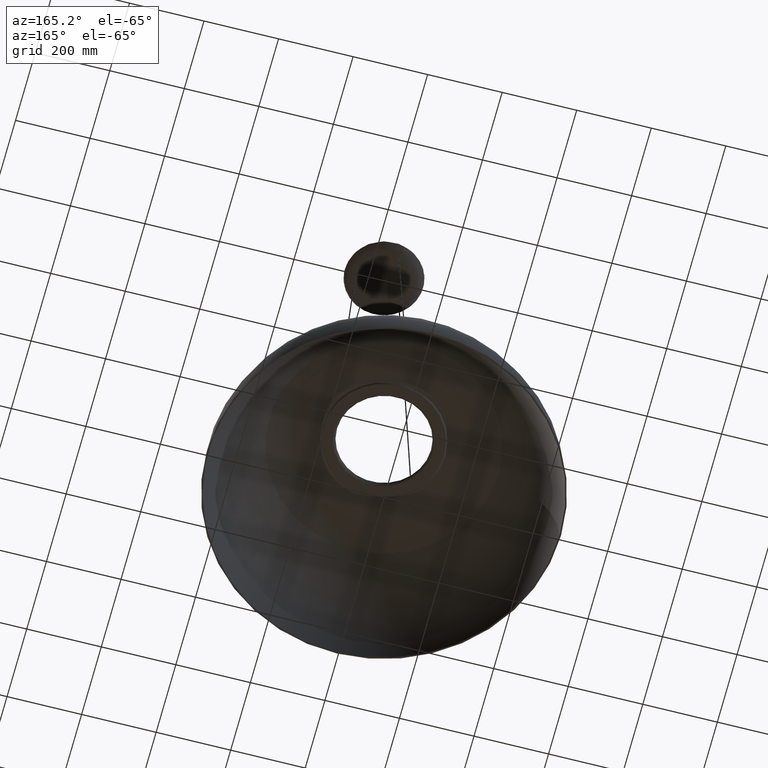
[diagram: clean part render]
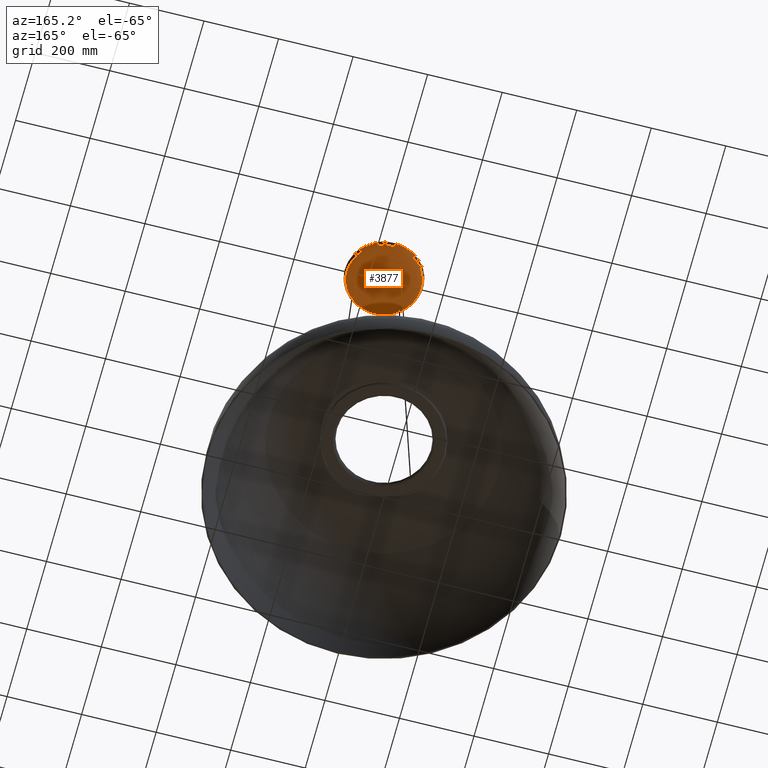
[diagram: same view with one face highlighted and labeled with its STEP entity id]
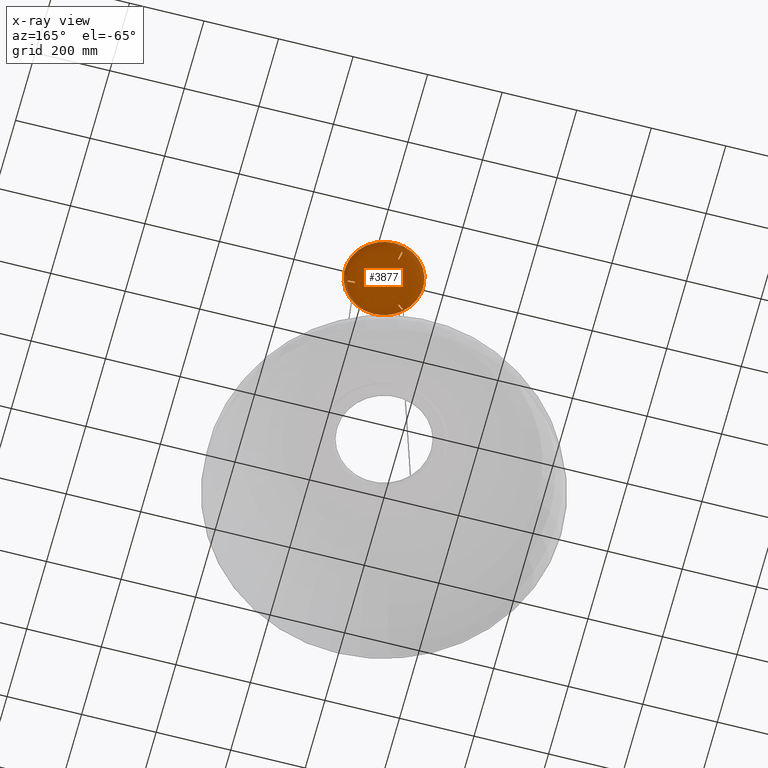
[diagram: x-ray of the same camera — body ghosted, the highlighted face saturated]
A machine part, auxiliary view. The second image highlights one B-rep face of the part: STEP entity #3877.
The next image is the same camera in x-ray: the body ghosted, the highlighted face saturated — about 1% of this face is hidden behind the body in this view.
In plain terms, the highlighted face is a freeform B-spline surface patch.
Its self-contained STEP definition (entity closure, byte-faithful):
#58=B_SPLINE_CURVE_WITH_KNOTS('',3,(#8068,#8069,#8070,#8071,#8072,#8073,
#8074,#8075,#8076),.UNSPECIFIED.,.F.,.F.,(4,1,1,1,1,1,4),(3.46944695195361E-18,
0.00146917827496323,0.00220376741244484,0.00293835654992646,0.00367294568740807,
0.00440753482488968,0.00587671309985291),.UNSPECIFIED.);
#59=B_SPLINE_CURVE_WITH_KNOTS('',3,(#8079,#8080,#8081,#8082,#8083),
 .UNSPECIFIED.,.F.,.F.,(4,1,4),(0.,0.00894403255815303,0.0178880651163061),
 .UNSPECIFIED.);
#60=B_SPLINE_CURVE_WITH_KNOTS('',3,(#8085,#8086,#8087,#8088,#8089,#8090,
#8091),.UNSPECIFIED.,.F.,.F.,(4,1,1,1,4),(1.73472347597681E-18,0.00139969760530542,
0.00279939521061083,0.00419909281591625,0.00559879042122166),
 .UNSPECIFIED.);
#61=B_SPLINE_CURVE_WITH_KNOTS('',3,(#8093,#8094,#8095,#8096,#8097),
 .UNSPECIFIED.,.F.,.F.,(4,1,4),(8.67361737988404E-19,0.00894403255815304,
0.0178880651163061),.UNSPECIFIED.);
#62=B_SPLINE_CURVE_WITH_KNOTS('',3,(#8101,#8102,#8103,#8104,#8105,#8106,
#8107,#8108,#8109),.UNSPECIFIED.,.F.,.F.,(4,1,1,1,1,1,4),(2.74283864732555E-18,
0.00146917827496326,0.00220376741244488,0.00293835654992651,0.00367294568740814,
0.00440753482488976,0.00587671309985302),.UNSPECIFIED.);
#63=B_SPLINE_CURVE_WITH_KNOTS('',3,(#8112,#8113,#8114,#8115,#8116),
 .UNSPECIFIED.,.F.,.F.,(4,1,4),(0.,0.00894403255815305,0.0178880651163061),
 .UNSPECIFIED.);
#64=B_SPLINE_CURVE_WITH_KNOTS('',3,(#8118,#8119,#8120,#8121,#8122,#8123,
#8124),.UNSPECIFIED.,.F.,.F.,(4,1,1,1,4),(1.44096954211131E-17,0.00139969760530541,
0.00279939521061081,0.0041990928159162,0.0055987904212216),
 .UNSPECIFIED.);
#65=B_SPLINE_CURVE_WITH_KNOTS('',3,(#8126,#8127,#8128,#8129,#8130),
 .UNSPECIFIED.,.F.,.F.,(4,1,4),(0.,0.00894403255815304,0.0178880651163061),
 .UNSPECIFIED.);
#66=B_SPLINE_CURVE_WITH_KNOTS('',3,(#8131,#8132,#8133,#8134,#8135,#8136,
#8137,#8138,#8139),.UNSPECIFIED.,.F.,.F.,(4,1,1,1,1,1,4),(1.66614749014063E-17,
0.00146917827496325,0.00220376741244487,0.00293835654992649,0.00367294568740811,
0.00440753482488973,0.00587671309985296),.UNSPECIFIED.);
#67=B_SPLINE_CURVE_WITH_KNOTS('',3,(#8142,#8143,#8144,#8145,#8146),
 .UNSPECIFIED.,.F.,.F.,(4,1,4),(0.,0.00894403255815303,0.0178880651163061),
 .UNSPECIFIED.);
#68=B_SPLINE_CURVE_WITH_KNOTS('',3,(#8148,#8149,#8150,#8151,#8152,#8153,
#8154),.UNSPECIFIED.,.F.,.F.,(4,1,1,1,4),(1.58990032769613E-17,0.00139969760530542,
0.00279939521061082,0.00419909281591623,0.00559879042122163),
 .UNSPECIFIED.);
#69=B_SPLINE_CURVE_WITH_KNOTS('',3,(#8156,#8157,#8158,#8159,#8160),
 .UNSPECIFIED.,.F.,.F.,(4,1,4),(8.67361737988403E-19,0.00894403255815304,
0.0178880651163061),.UNSPECIFIED.);
#85=B_SPLINE_SURFACE_WITH_KNOTS('',3,3,((#7753,#7754,#7755,#7756,#7757,
#7758,#7759,#7760,#7761,#7762,#7763,#7764,#7765,#7766,#7767,#7768,#7769,
#7770,#7771,#7772,#7773,#7774,#7775,#7776,#7777,#7778,#7779,#7780,#7781,
#7782,#7783,#7784,#7785,#7786,#7787),(#7788,#7789,#7790,#7791,#7792,#7793,
#7794,#7795,#7796,#7797,#7798,#7799,#7800,#7801,#7802,#7803,#7804,#7805,
#7806,#7807,#7808,#7809,#7810,#7811,#7812,#7813,#7814,#7815,#7816,#7817,
#7818,#7819,#7820,#7821,#7822),(#7823,#7824,#7825,#7826,#7827,#7828,#7829,
#7830,#7831,#7832,#7833,#7834,#7835,#7836,#7837,#7838,#7839,#7840,#7841,
#7842,#7843,#7844,#7845,#7846,#7847,#7848,#7849,#7850,#7851,#7852,#7853,
#7854,#7855,#7856,#7857),(#7858,#7859,#7860,#7861,#7862,#7863,#7864,#7865,
#7866,#7867,#7868,#7869,#7870,#7871,#7872,#7873,#7874,#7875,#7876,#7877,
#7878,#7879,#7880,#7881,#7882,#7883,#7884,#7885,#7886,#7887,#7888,#7889,
#7890,#7891,#7892),(#7893,#7894,#7895,#7896,#7897,#7898,#7899,#7900,#7901,
#7902,#7903,#7904,#7905,#7906,#7907,#7908,#7909,#7910,#7911,#7912,#7913,
#7914,#7915,#7916,#7917,#7918,#7919,#7920,#7921,#7922,#7923,#7924,#7925,
#7926,#7927),(#7928,#7929,#7930,#7931,#7932,#7933,#7934,#7935,#7936,#7937,
#7938,#7939,#7940,#7941,#7942,#7943,#7944,#7945,#7946,#7947,#7948,#7949,
#7950,#7951,#7952,#7953,#7954,#7955,#7956,#7957,#7958,#7959,#7960,#7961,
#7962),(#7963,#7964,#7965,#7966,#7967,#7968,#7969,#7970,#7971,#7972,#7973,
#7974,#7975,#7976,#7977,#7978,#7979,#7980,#7981,#7982,#7983,#7984,#7985,
#7986,#7987,#7988,#7989,#7990,#7991,#7992,#7993,#7994,#7995,#7996,#7997),
(#7998,#7999,#8000,#8001,#8002,#8003,#8004,#8005,#8006,#8007,#8008,#8009,
#8010,#8011,#8012,#8013,#8014,#8015,#8016,#8017,#8018,#8019,#8020,#8021,
#8022,#8023,#8024,#8025,#8026,#8027,#8028,#8029,#8030,#8031,#8032),(#8033,
#8034,#8035,#8036,#8037,#8038,#8039,#8040,#8041,#8042,#8043,#8044,#8045,
#8046,#8047,#8048,#8049,#8050,#8051,#8052,#8053,#8054,#8055,#8056,#8057,
#8058,#8059,#8060,#8061,#8062,#8063,#8064,#8065,#8066,#8067)),
 .UNSPECIFIED.,.F.,.T.,.F.,(4,1,1,1,1,1,4),(1,1,1,1,1,1,1,1,1,1,1,1,1,1,
1,1,1,1,1,1,1,1,1,1,1,1,1,1,1,1,1,1,1,1,1,1,1,1,1),(6.27365806646183,6.66873895833999,
6.86627940427907,7.06381985021816,7.26136029615724,7.45890074209632,7.85398163397448),
(-0.589048622548086,-0.392699081698725,-0.196349540849362,0.,0.196349540849362,
0.392699081698724,0.589048622548086,0.785398163397448,0.98174770424681,
1.17809724509617,1.37444678594553,1.5707963267949,1.76714586764426,1.96349540849362,
2.15984494934298,2.35619449019234,2.55254403104171,2.74889357189107,2.94524311274043,
3.14159265358979,3.33794219443916,3.53429173528852,3.73064127613788,3.92699081698724,
4.1233403578366,4.31968989868597,4.51603943953533,4.71238898038469,4.90873852123405,
5.10508806208341,5.30143760293278,5.49778714378214,5.6941366846315,5.89048622548086,
6.08683576633022,6.28318530717959,6.47953484802895,6.67588438887831,6.87223392972767),
 .UNSPECIFIED.);
#90=VERTEX_LOOP('',#2374);
#1088=ORIENTED_EDGE('',*,*,#1898,.F.);
#1089=ORIENTED_EDGE('',*,*,#1899,.F.);
#1090=ORIENTED_EDGE('',*,*,#1900,.F.);
#1091=ORIENTED_EDGE('',*,*,#1901,.F.);
#1092=ORIENTED_EDGE('',*,*,#1902,.T.);
#1093=ORIENTED_EDGE('',*,*,#1903,.F.);
#1094=ORIENTED_EDGE('',*,*,#1904,.F.);
#1095=ORIENTED_EDGE('',*,*,#1905,.F.);
#1096=ORIENTED_EDGE('',*,*,#1906,.F.);
#1097=ORIENTED_EDGE('',*,*,#1907,.F.);
#1098=ORIENTED_EDGE('',*,*,#1908,.F.);
#1099=ORIENTED_EDGE('',*,*,#1909,.F.);
#1100=ORIENTED_EDGE('',*,*,#1910,.F.);
#1898=EDGE_CURVE('',#2369,#2370,#58,.T.);
#1899=EDGE_CURVE('',#2371,#2369,#59,.T.);
#1900=EDGE_CURVE('',#2372,#2371,#60,.T.);
#1901=EDGE_CURVE('',#2370,#2372,#61,.T.);
#1902=EDGE_CURVE('',#2373,#2373,#2707,.T.);
#1903=EDGE_CURVE('',#2375,#2376,#62,.T.);
#1904=EDGE_CURVE('',#2377,#2375,#63,.T.);
#1905=EDGE_CURVE('',#2378,#2377,#64,.T.);
#1906=EDGE_CURVE('',#2376,#2378,#65,.T.);
#1907=EDGE_CURVE('',#2379,#2380,#66,.T.);
#1908=EDGE_CURVE('',#2381,#2379,#67,.T.);
#1909=EDGE_CURVE('',#2382,#2381,#68,.T.);
#1910=EDGE_CURVE('',#2380,#2382,#69,.T.);
#2369=VERTEX_POINT('',#8077);
#2370=VERTEX_POINT('',#8078);
#2371=VERTEX_POINT('',#8084);
#2372=VERTEX_POINT('',#8092);
#2373=VERTEX_POINT('',#8099);
#2374=VERTEX_POINT('',#8100);
#2375=VERTEX_POINT('',#8110);
#2376=VERTEX_POINT('',#8111);
#2377=VERTEX_POINT('',#8117);
#2378=VERTEX_POINT('',#8125);
#2379=VERTEX_POINT('',#8140);
#2380=VERTEX_POINT('',#8141);
#2381=VERTEX_POINT('',#8147);
#2382=VERTEX_POINT('',#8155);
#2707=CIRCLE('',#5129,104.995234699471);
#3014=EDGE_LOOP('',(#1088,#1089,#1090,#1091));
#3015=EDGE_LOOP('',(#1092));
#3016=EDGE_LOOP('',(#1093,#1094,#1095,#1096));
#3017=EDGE_LOOP('',(#1097,#1098,#1099,#1100));
#3435=FACE_BOUND('',#3014,.T.);
#3436=FACE_BOUND('',#3015,.T.);
#3437=FACE_BOUND('',#90,.T.);
#3438=FACE_BOUND('',#3016,.T.);
#3439=FACE_BOUND('',#3017,.T.);
#3877=ADVANCED_FACE('',(#3435,#3436,#3437,#3438,#3439),#85,.F.);
#5129=AXIS2_PLACEMENT_3D('',#8098,#5909,#5910);
#5909=DIRECTION('',(0.,0.,-1.));
#5910=DIRECTION('',(-1.,0.,0.));
#7753=CARTESIAN_POINT('',(-103.641595437354,-20.615595107449,10.4754422597069));
#7754=CARTESIAN_POINT('',(-105.67205433053,3.25260651745651E-14,10.4754422597069));
#7755=CARTESIAN_POINT('',(-103.641595437354,20.6155951074488,10.4754422597069));
#7756=CARTESIAN_POINT('',(-97.6282481543971,40.4389444562773,10.4754422597069));
#7757=CARTESIAN_POINT('',(-87.863102045419,58.7082478480725,10.4754422597069));
#7758=CARTESIAN_POINT('',(-74.7214261990308,74.7214261990308,10.4754422597069));
#7759=CARTESIAN_POINT('',(-58.7082478480724,87.863102045419,10.4754422597069));
#7760=CARTESIAN_POINT('',(-40.4389444562772,97.6282481543971,10.4754422597069));
#7761=CARTESIAN_POINT('',(-20.615595107449,103.641595437354,10.4754422597069));
#7762=CARTESIAN_POINT('',(5.42317079644302E-14,105.67205433053,10.4754422597069));
#7763=CARTESIAN_POINT('',(20.6155951074487,103.641595437354,10.4754422597069));
#7764=CARTESIAN_POINT('',(40.4389444562774,97.628248154397,10.4754422597069));
#7765=CARTESIAN_POINT('',(58.7082478480723,87.8631020454191,10.4754422597069));
#7766=CARTESIAN_POINT('',(74.721426199031,74.7214261990307,10.4754422597069));
#7767=CARTESIAN_POINT('',(87.863102045419,58.7082478480726,10.4754422597069));
#7768=CARTESIAN_POINT('',(97.6282481543969,40.4389444562775,10.4754422597069));
#7769=CARTESIAN_POINT('',(103.641595437354,20.6155951074489,10.4754422597069));
#7770=CARTESIAN_POINT('',(105.67205433053,-2.02215181322116E-14,10.4754422597069));
#7771=CARTESIAN_POINT('',(103.641595437354,-20.6155951074487,10.4754422597069));
#7772=CARTESIAN_POINT('',(97.6282481543971,-40.4389444562772,10.4754422597069));
#7773=CARTESIAN_POINT('',(87.8631020454191,-58.7082478480724,10.4754422597069));
#7774=CARTESIAN_POINT('',(74.7214261990307,-74.7214261990309,10.4754422597069));
#7775=CARTESIAN_POINT('',(58.7082478480726,-87.8631020454189,10.4754422597069));
#7776=CARTESIAN_POINT('',(40.4389444562774,-97.628248154397,10.4754422597069));
#7777=CARTESIAN_POINT('',(20.6155951074491,-103.641595437354,10.4754422597069));
#7778=CARTESIAN_POINT('',(-3.64835301590793E-13,-105.67205433053,10.4754422597069));
#7779=CARTESIAN_POINT('',(-20.6155951074487,-103.641595437354,10.4754422597069));
#7780=CARTESIAN_POINT('',(-40.4389444562771,-97.6282481543972,10.4754422597069));
#7781=CARTESIAN_POINT('',(-58.7082478480726,-87.8631020454189,10.4754422597069));
#7782=CARTESIAN_POINT('',(-74.7214261990305,-74.7214261990312,10.4754422597069));
#7783=CARTESIAN_POINT('',(-87.863102045419,-58.7082478480725,10.4754422597069));
#7784=CARTESIAN_POINT('',(-97.628248154397,-40.4389444562775,10.4754422597069));
#7785=CARTESIAN_POINT('',(-103.641595437354,-20.615595107449,10.4754422597069));
#7786=CARTESIAN_POINT('',(-105.67205433053,3.25260651745651E-14,10.4754422597069));
#7787=CARTESIAN_POINT('',(-103.641595437354,20.6155951074488,10.4754422597069));
#7788=CARTESIAN_POINT('',(-103.782923322122,-20.643706971585,6.39255455426409));
#7789=CARTESIAN_POINT('',(-105.816150992247,3.25260651745651E-14,6.39255455426408));
#7790=CARTESIAN_POINT('',(-103.782923322122,20.6437069715848,6.39255455426408));
#7791=CARTESIAN_POINT('',(-97.7613761108613,40.4940878613758,6.39255455426408));
#7792=CARTESIAN_POINT('',(-87.9829140408715,58.7883036640003,6.39255455426408));
#7793=CARTESIAN_POINT('',(-74.8233179256777,74.8233179256778,6.39255455426408));
#7794=CARTESIAN_POINT('',(-58.7883036640003,87.9829140408715,6.39255455426408));
#7795=CARTESIAN_POINT('',(-40.4940878613757,97.7613761108613,6.39255455426408));
#7796=CARTESIAN_POINT('',(-20.6437069715849,103.782923322122,6.39255455426408));
#7797=CARTESIAN_POINT('',(6.05285508943187E-14,105.816150992247,6.39255455426408));
#7798=CARTESIAN_POINT('',(20.6437069715846,103.782923322122,6.39255455426408));
#7799=CARTESIAN_POINT('',(40.494087861376,97.7613761108613,6.39255455426408));
#7800=CARTESIAN_POINT('',(58.7883036640001,87.9829140408716,6.39255455426408));
#7801=CARTESIAN_POINT('',(74.823317925678,74.8233179256776,6.39255455426409));
#7802=CARTESIAN_POINT('',(87.9829140408714,58.7883036640004,6.39255455426409));
#7803=CARTESIAN_POINT('',(97.7613761108612,40.494087861376,6.39255455426408));
#7804=CARTESIAN_POINT('',(103.782923322122,20.6437069715849,6.39255455426408));
#7805=CARTESIAN_POINT('',(105.816150992247,-1.8860965193014E-14,6.39255455426408));
#7806=CARTESIAN_POINT('',(103.782923322122,-20.6437069715847,6.39255455426409));
#7807=CARTESIAN_POINT('',(97.7613761108613,-40.4940878613757,6.39255455426408));
#7808=CARTESIAN_POINT('',(87.9829140408717,-58.7883036640002,6.39255455426409));
#7809=CARTESIAN_POINT('',(74.8233179256777,-74.8233179256779,6.39255455426408));
#7810=CARTESIAN_POINT('',(58.7883036640004,-87.9829140408714,6.39255455426408));
#7811=CARTESIAN_POINT('',(40.4940878613759,-97.7613761108612,6.39255455426408));
#7812=CARTESIAN_POINT('',(20.643706971585,-103.782923322122,6.39255455426408));
#7813=CARTESIAN_POINT('',(-3.64821749063637E-13,-105.816150992247,6.39255455426408));
#7814=CARTESIAN_POINT('',(-20.6437069715846,-103.782923322122,6.39255455426408));
#7815=CARTESIAN_POINT('',(-40.4940878613756,-97.7613761108614,6.39255455426408));
#7816=CARTESIAN_POINT('',(-58.7883036640004,-87.9829140408714,6.39255455426408));
#7817=CARTESIAN_POINT('',(-74.8233179256774,-74.8233179256781,6.39255455426408));
#7818=CARTESIAN_POINT('',(-87.9829140408715,-58.7883036640003,6.39255455426408));
#7819=CARTESIAN_POINT('',(-97.7613761108612,-40.494087861376,6.39255455426408));
#7820=CARTESIAN_POINT('',(-103.782923322122,-20.643706971585,6.39255455426409));
#7821=CARTESIAN_POINT('',(-105.816150992247,3.25260651745651E-14,6.39255455426408));
#7822=CARTESIAN_POINT('',(-103.782923322122,20.6437069715848,6.39255455426408));
#7823=CARTESIAN_POINT('',(-99.8649362071559,-19.8643708791841,0.260652211738369));
#7824=CARTESIAN_POINT('',(-101.821405971854,2.86229373536173E-14,0.260652211738369));
#7825=CARTESIAN_POINT('',(-99.8649362071558,19.8643708791839,0.260652211738369));
#7826=CARTESIAN_POINT('',(-94.0707129489183,38.9653651255483,0.260652211738369));
#7827=CARTESIAN_POINT('',(-84.6614049475174,56.5689422421664,0.260652211738369));
#7828=CARTESIAN_POINT('',(-71.9986066326463,71.9986066326463,0.260652211738369));
#7829=CARTESIAN_POINT('',(-56.5689422421664,84.6614049475174,0.260652211738369));
#7830=CARTESIAN_POINT('',(-38.9653651255482,94.0707129489183,0.260652211738369));
#7831=CARTESIAN_POINT('',(-19.864370879184,99.8649362071558,0.260652211738369));
#7832=CARTESIAN_POINT('',(4.15649655129526E-14,101.821405971854,0.260652211738369));
#7833=CARTESIAN_POINT('',(19.8643708791838,99.8649362071559,0.260652211738369));
#7834=CARTESIAN_POINT('',(38.9653651255484,94.0707129489182,0.260652211738369));
#7835=CARTESIAN_POINT('',(56.5689422421663,84.6614049475175,0.260652211738369));
#7836=CARTESIAN_POINT('',(71.9986066326464,71.9986066326462,0.260652211738369));
#7837=CARTESIAN_POINT('',(84.6614049475173,56.5689422421665,0.260652211738369));
#7838=CARTESIAN_POINT('',(94.0707129489182,38.9653651255484,0.260652211738369));
#7839=CARTESIAN_POINT('',(99.8649362071559,19.864370879184,0.260652211738369));
#7840=CARTESIAN_POINT('',(101.821405971854,-2.08067783233418E-14,0.260652211738369));
#7841=CARTESIAN_POINT('',(99.8649362071558,-19.8643708791838,0.260652211738369));
#7842=CARTESIAN_POINT('',(94.0707129489184,-38.9653651255481,0.260652211738369));
#7843=CARTESIAN_POINT('',(84.6614049475174,-56.5689422421663,0.260652211738369));
#7844=CARTESIAN_POINT('',(71.9986066326461,-71.9986066326464,0.260652211738369));
#7845=CARTESIAN_POINT('',(56.5689422421666,-84.6614049475173,0.260652211738369));
#7846=CARTESIAN_POINT('',(38.9653651255483,-94.0707129489183,0.260652211738369));
#7847=CARTESIAN_POINT('',(19.8643708791841,-99.8649362071558,0.260652211738369));
#7848=CARTESIAN_POINT('',(-3.19739267478974E-13,-101.821405971854,0.260652211738369));
#7849=CARTESIAN_POINT('',(-19.8643708791837,-99.8649362071559,0.260652211738369));
#7850=CARTESIAN_POINT('',(-38.965365125548,-94.0707129489184,0.260652211738369));
#7851=CARTESIAN_POINT('',(-56.5689422421665,-84.6614049475173,0.260652211738369));
#7852=CARTESIAN_POINT('',(-71.9986066326459,-71.9986066326466,0.260652211738369));
#7853=CARTESIAN_POINT('',(-84.6614049475174,-56.5689422421664,0.260652211738369));
#7854=CARTESIAN_POINT('',(-94.0707129489182,-38.9653651255484,0.260652211738369));
#7855=CARTESIAN_POINT('',(-99.8649362071559,-19.8643708791841,0.260652211738369));
#7856=CARTESIAN_POINT('',(-101.821405971854,2.86229373536173E-14,0.260652211738369));
#7857=CARTESIAN_POINT('',(-99.8649362071558,19.8643708791839,0.260652211738369));
#7858=CARTESIAN_POINT('',(-87.0832147595983,-17.321928406863,-7.00004875508219));
#7859=CARTESIAN_POINT('',(-88.7892757972426,2.90566182226115E-14,-7.00004875508219));
#7860=CARTESIAN_POINT('',(-87.0832147595983,17.3219284068629,-7.00004875508219));
#7861=CARTESIAN_POINT('',(-82.0305946155722,33.9781848192994,-7.00004875508219));
#7862=CARTESIAN_POINT('',(-73.8255847237571,49.3286786443159,-7.00004875508219));
#7863=CARTESIAN_POINT('',(-62.7834990128728,62.7834990128728,-7.00004875508219));
#7864=CARTESIAN_POINT('',(-49.3286786443158,73.8255847237571,-7.00004875508219));
#7865=CARTESIAN_POINT('',(-33.9781848192993,82.0305946155723,-7.00004875508219));
#7866=CARTESIAN_POINT('',(-17.321928406863,87.0832147595983,-7.00004875508219));
#7867=CARTESIAN_POINT('',(5.43507160935194E-14,88.7892757972426,-7.00004875508219));
#7868=CARTESIAN_POINT('',(17.3219284068627,87.0832147595984,-7.00004875508219));
#7869=CARTESIAN_POINT('',(33.9781848192995,82.0305946155722,-7.00004875508219));
#7870=CARTESIAN_POINT('',(49.3286786443157,73.8255847237572,-7.00004875508219));
#7871=CARTESIAN_POINT('',(62.783499012873,62.7834990128728,-7.00004875508219));
#7872=CARTESIAN_POINT('',(73.825584723757,49.3286786443159,-7.00004875508219));
#7873=CARTESIAN_POINT('',(82.0305946155722,33.9781848192995,-7.00004875508219));
#7874=CARTESIAN_POINT('',(87.0832147595984,17.3219284068629,-7.00004875508219));
#7875=CARTESIAN_POINT('',(88.7892757972426,-2.18530150423251E-14,-7.00004875508219));
#7876=CARTESIAN_POINT('',(87.0832147595984,-17.3219284068628,-7.00004875508219));
#7877=CARTESIAN_POINT('',(82.0305946155723,-33.9781848192993,-7.00004875508219));
#7878=CARTESIAN_POINT('',(73.8255847237572,-49.3286786443158,-7.00004875508219));
#7879=CARTESIAN_POINT('',(62.7834990128728,-62.783499012873,-7.00004875508219));
#7880=CARTESIAN_POINT('',(49.328678644316,-73.8255847237569,-7.00004875508219));
#7881=CARTESIAN_POINT('',(33.9781848192995,-82.0305946155722,-7.00004875508219));
#7882=CARTESIAN_POINT('',(17.3219284068631,-87.0832147595983,-7.00004875508219));
#7883=CARTESIAN_POINT('',(-3.01958987124922E-13,-88.7892757972427,-7.00004875508219));
#7884=CARTESIAN_POINT('',(-17.3219284068628,-87.0832147595983,-7.00004875508219));
#7885=CARTESIAN_POINT('',(-33.9781848192992,-82.0305946155723,-7.00004875508219));
#7886=CARTESIAN_POINT('',(-49.3286786443159,-73.825584723757,-7.00004875508219));
#7887=CARTESIAN_POINT('',(-62.7834990128726,-62.7834990128732,-7.00004875508219));
#7888=CARTESIAN_POINT('',(-73.8255847237571,-49.3286786443158,-7.00004875508219));
#7889=CARTESIAN_POINT('',(-82.0305946155722,-33.9781848192995,-7.00004875508219));
#7890=CARTESIAN_POINT('',(-87.0832147595983,-17.321928406863,-7.00004875508219));
#7891=CARTESIAN_POINT('',(-88.7892757972426,2.90566182226115E-14,-7.00004875508219));
#7892=CARTESIAN_POINT('',(-87.0832147595983,17.3219284068629,-7.00004875508219));
#7893=CARTESIAN_POINT('',(-74.1182154508336,-14.743029701281,-11.7780178893739));
#7894=CARTESIAN_POINT('',(-75.570277135849,2.29850860566927E-14,-11.7780178893739));
#7895=CARTESIAN_POINT('',(-74.1182154508335,14.7430297012808,-11.7780178893739));
#7896=CARTESIAN_POINT('',(-69.8178323120165,28.9194930391278,-11.7780178893739));
#7897=CARTESIAN_POINT('',(-62.8343890317403,41.9845964777196,-11.7780178893739));
#7898=CARTESIAN_POINT('',(-53.4362554189056,53.4362554189056,-11.7780178893739));
#7899=CARTESIAN_POINT('',(-41.9845964777196,62.8343890317403,-11.7780178893739));
#7900=CARTESIAN_POINT('',(-28.9194930391277,69.8178323120166,-11.7780178893739));
#7901=CARTESIAN_POINT('',(-14.7430297012809,74.1182154508335,-11.7780178893739));
#7902=CARTESIAN_POINT('',(2.88868939958054E-14,75.570277135849,-11.7780178893739));
#7903=CARTESIAN_POINT('',(14.7430297012807,74.1182154508335,-11.7780178893739));
#7904=CARTESIAN_POINT('',(28.9194930391278,69.8178323120165,-11.7780178893739));
#7905=CARTESIAN_POINT('',(41.9845964777195,62.8343890317403,-11.7780178893739));
#7906=CARTESIAN_POINT('',(53.4362554189057,53.4362554189055,-11.7780178893739));
#7907=CARTESIAN_POINT('',(62.8343890317403,41.9845964777197,-11.7780178893739));
#7908=CARTESIAN_POINT('',(69.8178323120165,28.9194930391279,-11.7780178893739));
#7909=CARTESIAN_POINT('',(74.1182154508336,14.7430297012809,-11.7780178893739));
#7910=CARTESIAN_POINT('',(75.570277135849,-1.50159203807082E-14,-11.7780178893739));
#7911=CARTESIAN_POINT('',(74.1182154508336,-14.7430297012808,-11.7780178893739));
#7912=CARTESIAN_POINT('',(69.8178323120166,-28.9194930391276,-11.7780178893739));
#7913=CARTESIAN_POINT('',(62.8343890317403,-41.9845964777195,-11.7780178893739));
#7914=CARTESIAN_POINT('',(53.4362554189055,-53.4362554189056,-11.7780178893739));
#7915=CARTESIAN_POINT('',(41.9845964777197,-62.8343890317402,-11.7780178893739));
#7916=CARTESIAN_POINT('',(28.9194930391278,-69.8178323120165,-11.7780178893739));
#7917=CARTESIAN_POINT('',(14.743029701281,-74.1182154508335,-11.7780178893739));
#7918=CARTESIAN_POINT('',(-2.38668897064318E-13,-75.570277135849,-11.7780178893739));
#7919=CARTESIAN_POINT('',(-14.7430297012807,-74.1182154508335,-11.7780178893739));
#7920=CARTESIAN_POINT('',(-28.9194930391276,-69.8178323120166,-11.7780178893739));
#7921=CARTESIAN_POINT('',(-41.9845964777196,-62.8343890317402,-11.7780178893739));
#7922=CARTESIAN_POINT('',(-53.4362554189053,-53.4362554189058,-11.7780178893739));
#7923=CARTESIAN_POINT('',(-62.8343890317403,-41.9845964777196,-11.7780178893739));
#7924=CARTESIAN_POINT('',(-69.8178323120165,-28.9194930391279,-11.7780178893739));
#7925=CARTESIAN_POINT('',(-74.1182154508336,-14.743029701281,-11.7780178893739));
#7926=CARTESIAN_POINT('',(-75.570277135849,2.29850860566927E-14,-11.7780178893739));
#7927=CARTESIAN_POINT('',(-74.1182154508335,14.7430297012808,-11.7780178893739));
#7928=CARTESIAN_POINT('',(-58.2676586377148,-11.5901579212977,-15.701117299553));
#7929=CARTESIAN_POINT('',(-59.4091895565145,1.77809156287623E-14,-15.7011172995529));
#7930=CARTESIAN_POINT('',(-58.2676586377148,11.5901579212976,-15.701117299553));
#7931=CARTESIAN_POINT('',(-54.886934274347,22.7349125735152,-15.701117299553));
#7932=CARTESIAN_POINT('',(-49.3969358077635,33.0059772854185,-15.701117299553));
#7933=CARTESIAN_POINT('',(-42.0086408002084,42.0086408002084,-15.701117299553));
#7934=CARTESIAN_POINT('',(-33.0059772854185,49.3969358077636,-15.701117299553));
#7935=CARTESIAN_POINT('',(-22.7349125735152,54.8869342743471,-15.701117299553));
#7936=CARTESIAN_POINT('',(-11.5901579212977,58.2676586377148,-15.701117299553));
#7937=CARTESIAN_POINT('',(3.47802316054456E-14,59.4091895565145,-15.701117299553));
#7938=CARTESIAN_POINT('',(11.5901579212975,58.2676586377148,-15.701117299553));
#7939=CARTESIAN_POINT('',(22.7349125735153,54.886934274347,-15.701117299553));
#7940=CARTESIAN_POINT('',(33.0059772854184,49.3969358077636,-15.701117299553));
#7941=CARTESIAN_POINT('',(42.0086408002085,42.0086408002084,-15.701117299553));
#7942=CARTESIAN_POINT('',(49.3969358077635,33.0059772854186,-15.701117299553));
#7943=CARTESIAN_POINT('',(54.886934274347,22.7349125735153,-15.701117299553));
#7944=CARTESIAN_POINT('',(58.2676586377148,11.5901579212977,-15.701117299553));
#7945=CARTESIAN_POINT('',(59.4091895565145,-1.24539266787912E-14,-15.701117299553));
#7946=CARTESIAN_POINT('',(58.2676586377148,-11.5901579212976,-15.701117299553));
#7947=CARTESIAN_POINT('',(54.8869342743471,-22.7349125735151,-15.701117299553));
#7948=CARTESIAN_POINT('',(49.3969358077636,-33.0059772854184,-15.701117299553));
#7949=CARTESIAN_POINT('',(42.0086408002083,-42.0086408002085,-15.701117299553));
#7950=CARTESIAN_POINT('',(33.0059772854186,-49.3969358077635,-15.701117299553));
#7951=CARTESIAN_POINT('',(22.7349125735153,-54.886934274347,-15.701117299553));
#7952=CARTESIAN_POINT('',(11.5901579212978,-58.2676586377148,-15.701117299553));
#7953=CARTESIAN_POINT('',(-1.96849398150715E-13,-59.4091895565145,-15.701117299553));
#7954=CARTESIAN_POINT('',(-11.5901579212975,-58.2676586377148,-15.701117299553));
#7955=CARTESIAN_POINT('',(-22.7349125735151,-54.8869342743471,-15.701117299553));
#7956=CARTESIAN_POINT('',(-33.0059772854186,-49.3969358077635,-15.701117299553));
#7957=CARTESIAN_POINT('',(-42.0086408002082,-42.0086408002086,-15.701117299553));
#7958=CARTESIAN_POINT('',(-49.3969358077635,-33.0059772854185,-15.701117299553));
#7959=CARTESIAN_POINT('',(-54.886934274347,-22.7349125735153,-15.701117299553));
#7960=CARTESIAN_POINT('',(-58.2676586377148,-11.5901579212977,-15.701117299553));
#7961=CARTESIAN_POINT('',(-59.4091895565145,1.77809156287623E-14,-15.7011172995529));
#7962=CARTESIAN_POINT('',(-58.2676586377148,11.5901579212976,-15.701117299553));
#7963=CARTESIAN_POINT('',(-34.1148948101162,-6.78587448958828,-19.593055090581));
#7964=CARTESIAN_POINT('',(-34.7832451116013,1.0842021724855E-14,-19.593055090581));
#7965=CARTESIAN_POINT('',(-34.1148948101162,6.78587448958822,-19.593055090581));
#7966=CARTESIAN_POINT('',(-32.1355282329317,13.3109716281038,-19.593055090581));
#7967=CARTESIAN_POINT('',(-28.9212113275676,19.3245355918303,-19.593055090581));
#7968=CARTESIAN_POINT('',(-24.5954684900872,24.5954684900872,-19.593055090581));
#7969=CARTESIAN_POINT('',(-19.3245355918303,28.9212113275676,-19.593055090581));
#7970=CARTESIAN_POINT('',(-13.3109716281038,32.1355282329318,-19.593055090581));
#7971=CARTESIAN_POINT('',(-6.78587448958827,34.1148948101162,-19.593055090581));
#7972=CARTESIAN_POINT('',(1.01489370157642E-14,34.7832451116014,-19.593055090581));
#7973=CARTESIAN_POINT('',(6.78587448958816,34.1148948101162,-19.593055090581));
#7974=CARTESIAN_POINT('',(13.3109716281039,32.1355282329317,-19.593055090581));
#7975=CARTESIAN_POINT('',(19.3245355918303,28.9212113275676,-19.593055090581));
#7976=CARTESIAN_POINT('',(24.5954684900872,24.5954684900871,-19.593055090581));
#7977=CARTESIAN_POINT('',(28.9212113275675,19.3245355918303,-19.593055090581));
#7978=CARTESIAN_POINT('',(32.1355282329317,13.3109716281039,-19.593055090581));
#7979=CARTESIAN_POINT('',(34.1148948101162,6.78587448958825,-19.593055090581));
#7980=CARTESIAN_POINT('',(34.7832451116013,-7.86299300236629E-15,-19.593055090581));
#7981=CARTESIAN_POINT('',(34.1148948101163,-6.78587448958819,-19.593055090581));
#7982=CARTESIAN_POINT('',(32.1355282329317,-13.3109716281038,-19.593055090581));
#7983=CARTESIAN_POINT('',(28.9212113275676,-19.3245355918303,-19.593055090581));
#7984=CARTESIAN_POINT('',(24.5954684900871,-24.5954684900872,-19.593055090581));
#7985=CARTESIAN_POINT('',(19.3245355918304,-28.9212113275675,-19.593055090581));
#7986=CARTESIAN_POINT('',(13.3109716281038,-32.1355282329317,-19.593055090581));
#7987=CARTESIAN_POINT('',(6.78587448958832,-34.1148948101162,-19.593055090581));
#7988=CARTESIAN_POINT('',(-1.26176568921842E-13,-34.7832451116013,-19.593055090581));
#7989=CARTESIAN_POINT('',(-6.78587448958817,-34.1148948101162,-19.593055090581));
#7990=CARTESIAN_POINT('',(-13.3109716281037,-32.1355282329318,-19.593055090581));
#7991=CARTESIAN_POINT('',(-19.3245355918303,-28.9212113275675,-19.593055090581));
#7992=CARTESIAN_POINT('',(-24.595468490087,-24.5954684900873,-19.593055090581));
#7993=CARTESIAN_POINT('',(-28.9212113275676,-19.3245355918303,-19.593055090581));
#7994=CARTESIAN_POINT('',(-32.1355282329317,-13.3109716281039,-19.593055090581));
#7995=CARTESIAN_POINT('',(-34.1148948101162,-6.78587448958828,-19.593055090581));
#7996=CARTESIAN_POINT('',(-34.7832451116013,1.0842021724855E-14,-19.593055090581));
#7997=CARTESIAN_POINT('',(-34.1148948101162,6.78587448958822,-19.593055090581));
#7998=CARTESIAN_POINT('',(-13.6515721148492,-2.7154665278188,-20.8232680917776));
#7999=CARTESIAN_POINT('',(-13.9190222239434,4.44522890719057E-15,-20.8232680917776));
#8000=CARTESIAN_POINT('',(-13.6515721148492,2.71546652781877,-20.8232680917776));
#8001=CARTESIAN_POINT('',(-12.8594997452711,5.32657919982464,-20.8232680917776));
#8002=CARTESIAN_POINT('',(-11.5732440121728,7.73299442036129,-20.8232680917776));
#8003=CARTESIAN_POINT('',(-9.84223500203667,9.84223500203667,-20.8232680917776));
#8004=CARTESIAN_POINT('',(-7.73299442036128,11.5732440121728,-20.8232680917776));
#8005=CARTESIAN_POINT('',(-5.32657919982463,12.8594997452711,-20.8232680917776));
#8006=CARTESIAN_POINT('',(-2.7154665278188,13.6515721148492,-20.8232680917776));
#8007=CARTESIAN_POINT('',(1.09991463365707E-14,13.9190222239435,-20.8232680917776));
#8008=CARTESIAN_POINT('',(2.71546652781875,13.6515721148492,-20.8232680917776));
#8009=CARTESIAN_POINT('',(5.32657919982466,12.8594997452711,-20.8232680917776));
#8010=CARTESIAN_POINT('',(7.73299442036127,11.5732440121728,-20.8232680917776));
#8011=CARTESIAN_POINT('',(9.8422350020367,9.84223500203666,-20.8232680917776));
#8012=CARTESIAN_POINT('',(11.5732440121728,7.7329944203613,-20.8232680917776));
#8013=CARTESIAN_POINT('',(12.8594997452711,5.32657919982467,-20.8232680917776));
#8014=CARTESIAN_POINT('',(13.6515721148492,2.71546652781878,-20.8232680917776));
#8015=CARTESIAN_POINT('',(13.9190222239434,-2.70809457030347E-15,-20.8232680917776));
#8016=CARTESIAN_POINT('',(13.6515721148492,-2.71546652781876,-20.8232680917776));
#8017=CARTESIAN_POINT('',(12.8594997452711,-5.32657919982462,-20.8232680917776));
#8018=CARTESIAN_POINT('',(11.5732440121728,-7.73299442036128,-20.8232680917776));
#8019=CARTESIAN_POINT('',(9.84223500203665,-9.84223500203669,-20.8232680917776));
#8020=CARTESIAN_POINT('',(7.73299442036131,-11.5732440121728,-20.8232680917776));
#8021=CARTESIAN_POINT('',(5.32657919982466,-12.8594997452711,-20.8232680917776));
#8022=CARTESIAN_POINT('',(2.7154665278188,-13.6515721148492,-20.8232680917776));
#8023=CARTESIAN_POINT('',(-4.11891475821677E-14,-13.9190222239435,-20.8232680917776));
#8024=CARTESIAN_POINT('',(-2.71546652781875,-13.6515721148492,-20.8232680917776));
#8025=CARTESIAN_POINT('',(-5.32657919982461,-12.8594997452711,-20.8232680917776));
#8026=CARTESIAN_POINT('',(-7.7329944203613,-11.5732440121728,-20.8232680917776));
#8027=CARTESIAN_POINT('',(-9.84223500203663,-9.84223500203672,-20.8232680917776));
#8028=CARTESIAN_POINT('',(-11.5732440121728,-7.73299442036129,-20.8232680917776));
#8029=CARTESIAN_POINT('',(-12.8594997452711,-5.32657919982466,-20.8232680917776));
#8030=CARTESIAN_POINT('',(-13.6515721148492,-2.7154665278188,-20.8232680917776));
#8031=CARTESIAN_POINT('',(-13.9190222239434,4.44522890719057E-15,-20.8232680917776));
#8032=CARTESIAN_POINT('',(-13.6515721148492,2.71546652781877,-20.8232680917776));
#8033=CARTESIAN_POINT('',(-1.06277186513875E-13,-2.11398467679245E-14,-20.8198977345775));
#8034=CARTESIAN_POINT('',(-1.08359279688803E-13,3.2740809054583E-29,-20.8198977345775));
#8035=CARTESIAN_POINT('',(-1.06277186513875E-13,2.11398467679243E-14,-20.8198977345775));
#8036=CARTESIAN_POINT('',(-1.00110920662151E-13,4.146730107992E-14,-20.8198977345775));
#8037=CARTESIAN_POINT('',(-9.00974482722324E-14,6.02011902665448E-14,-20.8198977345775));
#8038=CARTESIAN_POINT('',(-7.66215814724426E-14,7.66215814724426E-14,-20.8198977345775));
#8039=CARTESIAN_POINT('',(-6.02011902665447E-14,9.00974482722324E-14,-20.8198977345775));
#8040=CARTESIAN_POINT('',(-4.14673010799199E-14,1.00110920662151E-13,-20.8198977345775));
#8041=CARTESIAN_POINT('',(-2.11398467679245E-14,1.06277186513875E-13,-20.8198977345775));
#8042=CARTESIAN_POINT('',(6.02770933610133E-29,1.08359279688803E-13,-20.8198977345775));
#8043=CARTESIAN_POINT('',(2.11398467679242E-14,1.06277186513875E-13,-20.8198977345775));
#8044=CARTESIAN_POINT('',(4.14673010799201E-14,1.00110920662151E-13,-20.8198977345775));
#8045=CARTESIAN_POINT('',(6.02011902665446E-14,9.00974482722325E-14,-20.8198977345775));
#8046=CARTESIAN_POINT('',(7.66215814724427E-14,7.66215814724425E-14,-20.8198977345775));
#8047=CARTESIAN_POINT('',(9.00974482722323E-14,6.02011902665449E-14,-20.8198977345775));
#8048=CARTESIAN_POINT('',(1.00110920662151E-13,4.14673010799202E-14,-20.8198977345775));
#8049=CARTESIAN_POINT('',(1.06277186513875E-13,2.11398467679244E-14,-20.8198977345775));
#8050=CARTESIAN_POINT('',(1.08359279688803E-13,-2.45847372937172E-29,-20.8198977345775));
#8051=CARTESIAN_POINT('',(1.06277186513875E-13,-2.11398467679242E-14,-20.8198977345775));
#8052=CARTESIAN_POINT('',(1.00110920662151E-13,-4.14673010799199E-14,-20.8198977345775));
#8053=CARTESIAN_POINT('',(9.00974482722325E-14,-6.02011902665447E-14,-20.8198977345775));
#8054=CARTESIAN_POINT('',(7.66215814724424E-14,-7.66215814724427E-14,-20.8198977345775));
#8055=CARTESIAN_POINT('',(6.02011902665449E-14,-9.00974482722323E-14,-20.8198977345775));
#8056=CARTESIAN_POINT('',(4.14673010799201E-14,-1.00110920662151E-13,-20.8198977345775));
#8057=CARTESIAN_POINT('',(2.11398467679246E-14,-1.06277186513875E-13,-20.8198977345775));
#8058=CARTESIAN_POINT('',(-3.67392201750632E-28,-1.08359279688803E-13,-20.8198977345775));
#8059=CARTESIAN_POINT('',(-2.11398467679242E-14,-1.06277186513875E-13,-20.8198977345775));
#8060=CARTESIAN_POINT('',(-4.14673010799197E-14,-1.00110920662152E-13,-20.8198977345775));
#8061=CARTESIAN_POINT('',(-6.02011902665449E-14,-9.00974482722322E-14,-20.8198977345775));
#8062=CARTESIAN_POINT('',(-7.66215814724422E-14,-7.66215814724429E-14,-20.8198977345775));
#8063=CARTESIAN_POINT('',(-9.00974482722324E-14,-6.02011902665448E-14,-20.8198977345775));
#8064=CARTESIAN_POINT('',(-1.00110920662151E-13,-4.14673010799202E-14,-20.8198977345775));
#8065=CARTESIAN_POINT('',(-1.06277186513875E-13,-2.11398467679245E-14,-20.8198977345775));
#8066=CARTESIAN_POINT('',(-1.08359279688803E-13,3.2740809054583E-29,-20.8198977345775));
#8067=CARTESIAN_POINT('',(-1.06277186513875E-13,2.11398467679243E-14,-20.8198977345775));
#8068=CARTESIAN_POINT('',(48.1405444566228,-79.8818689028989,-4.05997205156351));
#8069=CARTESIAN_POINT('',(48.3572869332127,-80.2572778845111,-3.81254031605016));
#8070=CARTESIAN_POINT('',(48.470665349493,-80.9238158743153,-3.43970398237037));
#8071=CARTESIAN_POINT('',(48.0925803099286,-81.8012893798177,-3.09233923954796));
#8072=CARTESIAN_POINT('',(47.5333624933347,-82.3159458194414,-2.98976011909055));
#8073=CARTESIAN_POINT('',(46.8096318544382,-82.5487245023843,-3.08875057421662));
#8074=CARTESIAN_POINT('',(45.856137956852,-82.4448929064439,-3.4337379006208));
#8075=CARTESIAN_POINT('',(45.3265315931358,-82.0078556501872,-3.81215951119207));
#8076=CARTESIAN_POINT('',(45.1094555433772,-81.631868902899,-4.05997205156351));
#8077=CARTESIAN_POINT('',(48.1405444566228,-79.8818689028989,-4.05997205156352));
#8078=CARTESIAN_POINT('',(45.1094555433772,-81.6318689028989,-4.05997205156351));
#8079=CARTESIAN_POINT('',(39.8905444566228,-65.5924497404557,-10.9688701985336));
#8080=CARTESIAN_POINT('',(41.3176027515493,-68.0641872126311,-10.0660409674556));
#8081=CARTESIAN_POINT('',(44.1321898679946,-72.9391951006433,-8.07157198954082));
#8082=CARTESIAN_POINT('',(46.8362110041449,-77.6226970931955,-5.54899023993304));
#8083=CARTESIAN_POINT('',(48.1405444566227,-79.8818689028989,-4.05997205156353));
#8084=CARTESIAN_POINT('',(39.8905444566228,-65.5924497404557,-10.9688701985336));
#8085=CARTESIAN_POINT('',(36.8594555433772,-67.3424497404557,-10.9688701985336));
#8086=CARTESIAN_POINT('',(36.6338884973538,-66.9517561562299,-11.1115753167771));
#8087=CARTESIAN_POINT('',(36.4938505836049,-66.00162506919,-11.3905969516571));
#8088=CARTESIAN_POINT('',(37.3958674924821,-64.778504961586,-11.5775300372908));
#8089=CARTESIAN_POINT('',(38.9097199684824,-64.6032812687127,-11.3915494894289));
#8090=CARTESIAN_POINT('',(39.6649316728231,-65.2016769360775,-11.1116042528069));
#8091=CARTESIAN_POINT('',(39.8905444566228,-65.5924497404556,-10.9688701985336));
#8092=CARTESIAN_POINT('',(36.8594555433772,-67.3424497404557,-10.9688701985336));
#8093=CARTESIAN_POINT('',(45.1094555433772,-81.6318689028989,-4.05997205156351));
#8094=CARTESIAN_POINT('',(43.8051220908993,-79.3726970931955,-5.54899023993302));
#8095=CARTESIAN_POINT('',(41.1011009547491,-74.6891951006432,-8.07157198954084));
#8096=CARTESIAN_POINT('',(38.2865138383038,-69.8141872126311,-10.0660409674556));
#8097=CARTESIAN_POINT('',(36.8594555433772,-67.3424497404557,-10.9688701985336));
#8098=CARTESIAN_POINT('',(0.,0.,10.4754422597069));
#8099=CARTESIAN_POINT('',(-104.995234699471,0.,10.4754422597069));
#8100=CARTESIAN_POINT('',(-1.440651456198E-14,0.,-20.8198977345774));
#8101=CARTESIAN_POINT('',(-93.25,-1.75000000000003,-4.05997205156351));
#8102=CARTESIAN_POINT('',(-93.6834849531799,-1.75000000000003,-3.81254031605015));
#8103=CARTESIAN_POINT('',(-94.317412993078,-1.51491959383735,-3.43970398237038));
#8104=CARTESIAN_POINT('',(-94.8882848202086,-0.748751592032595,-3.09233923954796));
#8105=CARTESIAN_POINT('',(-95.0543814628471,-0.00712653680153827,-2.98976011909055));
#8106=CARTESIAN_POINT('',(-94.8941083962868,0.736031923451467,-3.08875057421662));
#8107=CARTESIAN_POINT('',(-94.327440647694,1.50986606314435,-3.4337379006208));
#8108=CARTESIAN_POINT('',(-93.6841520995173,1.75000000000008,-3.81215951119207));
#8109=CARTESIAN_POINT('',(-93.25,1.75000000000008,-4.05997205156351));
#8110=CARTESIAN_POINT('',(-93.25,-1.75,-4.05997205156351));
#8111=CARTESIAN_POINT('',(-93.25,1.75,-4.05997205156351));
#8112=CARTESIAN_POINT('',(-76.75,-1.75000000000001,-10.9688701985336));
#8113=CARTESIAN_POINT('',(-79.6041165898531,-1.75000000000001,-10.0660409674556));
#8114=CARTESIAN_POINT('',(-85.2332908227438,-1.75000000000005,-8.07157198954082));
#8115=CARTESIAN_POINT('',(-90.6413330950442,-1.74999999999997,-5.54899023993302));
#8116=CARTESIAN_POINT('',(-93.25,-1.74999999999997,-4.05997205156351));
#8117=CARTESIAN_POINT('',(-76.75,-1.75000000000001,-10.9688701985336));
#8118=CARTESIAN_POINT('',(-76.75,1.75,-10.9688701985336));
#8119=CARTESIAN_POINT('',(-76.2988659079532,1.75,-11.1115753167771));
#8120=CARTESIAN_POINT('',(-75.406009292777,1.39621084727962,-11.390596951657));
#8121=CARTESIAN_POINT('',(-74.7977646621508,0.00348123574686845,-11.5775300372908));
#8122=CARTESIAN_POINT('',(-75.4029427307778,-1.39516531248801,-11.3915494894289));
#8123=CARTESIAN_POINT('',(-76.2987744324006,-1.75000000000014,-11.1116042528069));
#8124=CARTESIAN_POINT('',(-76.75,-1.75000000000015,-10.9688701985336));
#8125=CARTESIAN_POINT('',(-76.75,1.75000000000002,-10.9688701985336));
#8126=CARTESIAN_POINT('',(-93.25,1.75,-4.05997205156351));
#8127=CARTESIAN_POINT('',(-90.6413330950442,1.75,-5.54899023993302));
#8128=CARTESIAN_POINT('',(-85.2332908227438,1.75000000000001,-8.07157198954083));
#8129=CARTESIAN_POINT('',(-79.6041165898531,1.75000000000002,-10.0660409674556));
#8130=CARTESIAN_POINT('',(-76.75,1.75000000000002,-10.9688701985336));
#8131=CARTESIAN_POINT('',(45.1094555433774,81.6318689028989,-4.05997205156351));
#8132=CARTESIAN_POINT('',(45.3261980199673,82.007277884511,-3.81254031605016));
#8133=CARTESIAN_POINT('',(45.8467476435852,82.4387354681528,-3.43970398237033));
#8134=CARTESIAN_POINT('',(46.7957045102802,82.5500409718502,-3.09233923954797));
#8135=CARTESIAN_POINT('',(47.5210189695125,82.3230723562429,-2.98976011909055));
#8136=CARTESIAN_POINT('',(48.0844765418489,81.8126925789328,-3.08875057421662));
#8137=CARTESIAN_POINT('',(48.471302690842,80.9350268432996,-3.4337379006208));
#8138=CARTESIAN_POINT('',(48.3576205063816,80.2578556501871,-3.81215951119207));
#8139=CARTESIAN_POINT('',(48.140544456623,79.8818689028988,-4.05997205156351));
#8140=CARTESIAN_POINT('',(45.1094555433773,81.6318689028988,-4.05997205156351));
#8141=CARTESIAN_POINT('',(48.1405444566229,79.8818689028988,-4.05997205156351));
#8142=CARTESIAN_POINT('',(36.8594555433774,67.3424497404556,-10.9688701985336));
#8143=CARTESIAN_POINT('',(38.2865138383039,69.814187212631,-10.0660409674556));
#8144=CARTESIAN_POINT('',(41.1011009547492,74.6891951006432,-8.07157198954083));
#8145=CARTESIAN_POINT('',(43.8051220908995,79.3726970931954,-5.54899023993302));
#8146=CARTESIAN_POINT('',(45.1094555433774,81.6318689028989,-4.05997205156351));
#8147=CARTESIAN_POINT('',(36.8594555433774,67.3424497404556,-10.9688701985336));
#8148=CARTESIAN_POINT('',(39.8905444566229,65.5924497404556,-10.9688701985336));
#8149=CARTESIAN_POINT('',(39.6649774105994,65.2017561562298,-11.1115753167771));
#8150=CARTESIAN_POINT('',(38.9121587091721,64.6054142219103,-11.3905969516571));
#8151=CARTESIAN_POINT('',(37.4018971696688,64.7750237258391,-11.5775300372908));
#8152=CARTESIAN_POINT('',(36.4932227622953,65.9984465812007,-11.3915494894289));
#8153=CARTESIAN_POINT('',(36.6338427595775,66.9516769360775,-11.1116042528069));
#8154=CARTESIAN_POINT('',(36.8594555433772,67.3424497404556,-10.9688701985336));
#8155=CARTESIAN_POINT('',(39.8905444566229,65.5924497404556,-10.9688701985336));
#8156=CARTESIAN_POINT('',(48.1405444566229,79.8818689028988,-4.05997205156351));
#8157=CARTESIAN_POINT('',(46.836211004145,77.6226970931954,-5.54899023993302));
#8158=CARTESIAN_POINT('',(44.1321898679947,72.9391951006432,-8.07157198954083));
#8159=CARTESIAN_POINT('',(41.3176027515494,68.064187212631,-10.0660409674556));
#8160=CARTESIAN_POINT('',(39.8905444566229,65.5924497404556,-10.9688701985336));